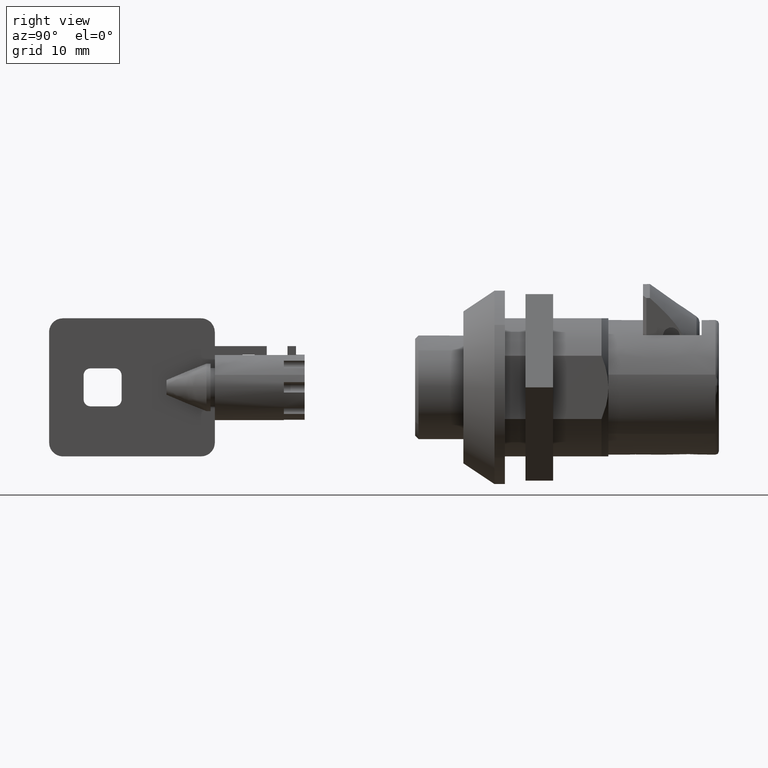
[diagram: clean part render]
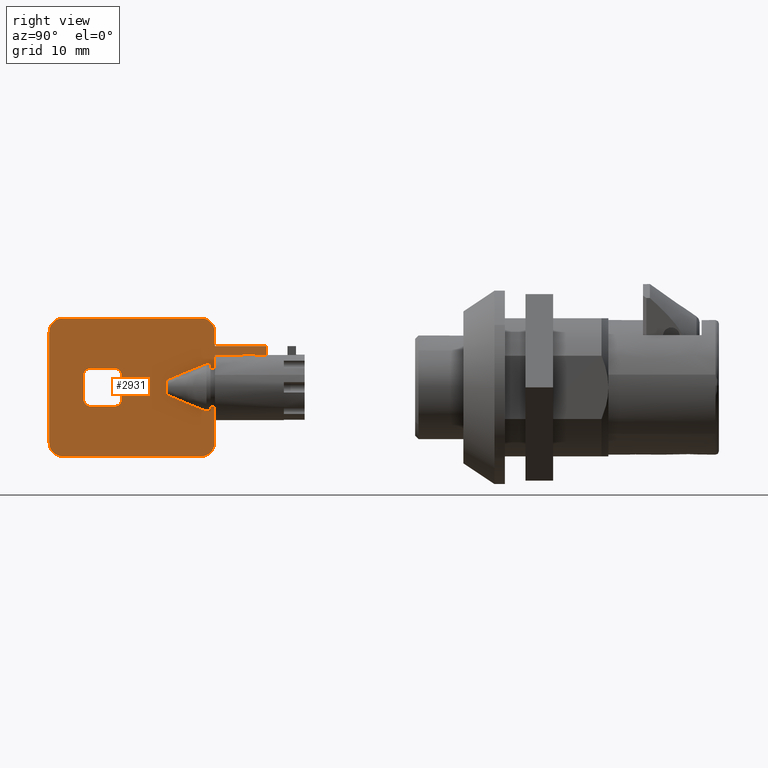
[diagram: same view with one face highlighted and labeled with its STEP entity id]
A machine part, right view. The second image highlights one B-rep face of the part: STEP entity #2931.
In plain terms, the highlighted face is a freeform B-spline surface patch.
Its self-contained STEP definition (entity closure, byte-faithful):
#544=CARTESIAN_POINT('',(-232.0,-0.750000000000028,-4.690415759823541));
#545=VERTEX_POINT('',#544);
#647=CARTESIAN_POINT('',(-224.475236736999990,-0.750000000000028,4.690415759823321));
#648=VERTEX_POINT('',#647);
#654=CARTESIAN_POINT('',(-226.242444563790000,-0.750000000000028,4.690415759823321));
#655=VERTEX_POINT('',#654);
#656=CARTESIAN_POINT('',(-224.475236736999990,-0.750000000000028,4.690415759823321));
#657=CARTESIAN_POINT('',(-226.242444563790000,-0.750000000000028,4.690415759823321));
#658=QUASI_UNIFORM_CURVE('',1,(#656,#657),.UNSPECIFIED.,.F.,.U.);
#659=EDGE_CURVE('',#648,#655,#658,.T.);
#661=CARTESIAN_POINT('',(-228.0,-0.750000000000000,4.690415759823321));
#662=VERTEX_POINT('',#661);
#668=CARTESIAN_POINT('',(-232.0,-0.750000000000000,4.690415759823321));
#669=VERTEX_POINT('',#668);
#670=CARTESIAN_POINT('',(-228.0,-0.750000000000000,4.690415759823321));
#671=CARTESIAN_POINT('',(-232.0,-0.750000000000000,4.690415759823321));
#672=QUASI_UNIFORM_CURVE('',1,(#670,#671),.UNSPECIFIED.,.F.,.U.);
#673=EDGE_CURVE('',#662,#669,#672,.T.);
#933=CARTESIAN_POINT('',(-224.475236736999990,-0.750000000000028,5.970740871829980));
#934=VERTEX_POINT('',#933);
#940=CARTESIAN_POINT('',(-224.475236736999990,-0.750000000000028,5.970740871829980));
#941=CARTESIAN_POINT('',(-224.475236736999990,-0.750000000000028,4.690415759823321));
#942=QUASI_UNIFORM_CURVE('',1,(#940,#941),.UNSPECIFIED.,.F.,.U.);
#943=EDGE_CURVE('',#934,#648,#942,.T.);
#973=CARTESIAN_POINT('',(-226.242444563790000,-0.750000000000028,4.737948698619991));
#974=VERTEX_POINT('',#973);
#980=CARTESIAN_POINT('',(-228.0,-0.750000000000028,4.737948698619991));
#981=VERTEX_POINT('',#980);
#982=CARTESIAN_POINT('',(-226.242444563790000,-0.750000000000028,4.737948698619991));
#983=CARTESIAN_POINT('',(-228.0,-0.750000000000028,4.737948698619991));
#984=QUASI_UNIFORM_CURVE('',1,(#982,#983),.UNSPECIFIED.,.F.,.U.);
#985=EDGE_CURVE('',#974,#981,#984,.T.);
#1008=CARTESIAN_POINT('',(-226.242444563790000,-0.750000000000028,4.690415759823321));
#1009=CARTESIAN_POINT('',(-226.242444563790000,-0.750000000000028,4.737948698619991));
#1010=QUASI_UNIFORM_CURVE('',1,(#1008,#1009),.UNSPECIFIED.,.F.,.U.);
#1011=EDGE_CURVE('',#655,#974,#1010,.T.);
#1868=CARTESIAN_POINT('',(-232.599999999999990,-0.750000000000000,3.440203482352215));
#1869=VERTEX_POINT('',#1868);
#1870=CARTESIAN_POINT('',(-232.599999999999990,-0.750000000000000,2.806243040085030));
#1871=VERTEX_POINT('',#1870);
#1872=CARTESIAN_POINT('',(-232.599999999999990,-0.750000000000000,3.440203482352215));
#1873=CARTESIAN_POINT('',(-232.599999999999990,-0.750000000000000,2.806243040085030));
#1874=QUASI_UNIFORM_CURVE('',1,(#1872,#1873),.UNSPECIFIED.,.F.,.U.);
#1875=EDGE_CURVE('',#1869,#1871,#1874,.T.);
#1877=CARTESIAN_POINT('',(-232.599999999999990,-0.750000000000000,-3.440203482352215));
#1878=VERTEX_POINT('',#1877);
#1894=CARTESIAN_POINT('',(-232.599999999999990,-0.750000000000000,-2.806243040085030));
#1895=VERTEX_POINT('',#1894);
#1896=CARTESIAN_POINT('',(-232.599999999999990,-0.750000000000000,-2.806243040085030));
#1897=CARTESIAN_POINT('',(-232.599999999999990,-0.750000000000000,-3.440203482352215));
#1898=QUASI_UNIFORM_CURVE('',1,(#1896,#1897),.UNSPECIFIED.,.F.,.U.);
#1899=EDGE_CURVE('',#1895,#1878,#1898,.T.);
#1936=CARTESIAN_POINT('',(-233.199999999999990,-0.750000000000000,-3.440203482352215));
#1937=VERTEX_POINT('',#1936);
#1938=CARTESIAN_POINT('',(-232.599999999999990,-0.750000000000000,-3.440203482352215));
#1939=CARTESIAN_POINT('',(-233.199999999999990,-0.750000000000000,-3.440203482352215));
#1940=QUASI_UNIFORM_CURVE('',1,(#1938,#1939),.UNSPECIFIED.,.F.,.U.);
#1941=EDGE_CURVE('',#1878,#1937,#1940,.T.);
#1944=CARTESIAN_POINT('',(-233.199999999999990,-0.750000000000000,3.440203482352215));
#1945=VERTEX_POINT('',#1944);
#1946=CARTESIAN_POINT('',(-233.199999999999990,-0.750000000000000,3.440203482352215));
#1947=CARTESIAN_POINT('',(-232.599999999999990,-0.750000000000000,3.440203482352215));
#1948=QUASI_UNIFORM_CURVE('',1,(#1946,#1947),.UNSPECIFIED.,.F.,.U.);
#1949=EDGE_CURVE('',#1945,#1869,#1948,.T.);
#1987=CARTESIAN_POINT('',(-239.0,-0.750000000000000,-1.060660171775574));
#1988=VERTEX_POINT('',#1987);
#1989=CARTESIAN_POINT('',(-233.199999999999990,-0.750000000000000,-3.440203482352215));
#1990=CARTESIAN_POINT('',(-233.831297445666710,-0.750000000000000,-3.192672116676382));
#1991=CARTESIAN_POINT('',(-234.462215594331210,-0.750000000000000,-2.944169559553595));
#1992=CARTESIAN_POINT('',(-235.722431058296990,-0.750000000000000,-2.443014295184313));
#1993=CARTESIAN_POINT('',(-236.351808152626690,-0.750000000000000,-2.190592215184496));
#1994=CARTESIAN_POINT('',(-237.292531770479000,-0.750000000000000,-1.804020677361460));
#1995=CARTESIAN_POINT('',(-237.605542711084810,-0.750000000000000,-1.673814610878441));
#1996=CARTESIAN_POINT('',(-238.229324450946390,-0.750000000000000,-1.408041042322752));
#1997=CARTESIAN_POINT('',(-238.540191876838290,-0.750000000000000,-1.272704801320065));
#1998=CARTESIAN_POINT('',(-238.899030339134610,-0.750000000000000,-1.107755796623606));
#1999=CARTESIAN_POINT('',(-238.949568609213600,-0.750000000000000,-1.084316623477761));
#2000=CARTESIAN_POINT('',(-239.0,-0.750000000000000,-1.060660171775574));
#2001=B_SPLINE_CURVE_WITH_KNOTS('',3,(#1989,#1990,#1991,#1992,#1993,#1994,#1995,#1996,#1997,#1998,#1999,#2000),.UNSPECIFIED.,.F.,.U.,(4,2,2,2,2,4),(0.0,0.125000000000023,0.250000000000045,0.312500000000057,0.375000000000068,0.385264977141127),.UNSPECIFIED.);
#2002=EDGE_CURVE('',#1937,#1988,#2001,.T.);
#2005=CARTESIAN_POINT('',(-239.0,-0.750000000000000,1.060660171775574));
#2006=VERTEX_POINT('',#2005);
#2007=CARTESIAN_POINT('',(-239.0,-0.750000000000000,1.060660171775574));
#2008=CARTESIAN_POINT('',(-238.936167796036300,-0.750000000000000,1.090606473848746));
#2009=CARTESIAN_POINT('',(-238.872155778518900,-0.750000000000000,1.120206575066255));
#2010=CARTESIAN_POINT('',(-238.501917908066300,-0.750000000000000,1.289562803727005));
#2011=CARTESIAN_POINT('',(-238.192963531593590,-0.750000000000000,1.423754877889063));
#2012=CARTESIAN_POINT('',(-237.573466015208510,-0.750000000000000,1.687231626343362));
#2013=CARTESIAN_POINT('',(-237.262670403461190,-0.750000000000000,1.816383808526862));
#2014=CARTESIAN_POINT('',(-236.328686096132490,-0.750000000000000,2.199893891331620));
#2015=CARTESIAN_POINT('',(-235.703939635300800,-0.750000000000000,2.450403421683778));
#2016=CARTESIAN_POINT('',(-234.452982118316900,-0.750000000000000,2.947804283120521));
#2017=CARTESIAN_POINT('',(-233.826684131985590,-0.750000000000000,3.194480858152192));
#2018=CARTESIAN_POINT('',(-233.199999999999990,-0.750000000000000,3.440203482352215));
#2019=B_SPLINE_CURVE_WITH_KNOTS('',3,(#2007,#2008,#2009,#2010,#2011,#2012,#2013,#2014,#2015,#2016,#2017,#2018),.UNSPECIFIED.,.F.,.U.,(4,2,2,2,2,4),(0.611902203524427,0.625000000000063,0.687500000000052,0.750000000000042,0.875000000000021,1.0),.UNSPECIFIED.);
#2020=EDGE_CURVE('',#2006,#1945,#2019,.T.);
#2040=CARTESIAN_POINT('',(-239.0,-0.750000000000000,-1.060660171775574));
#2041=CARTESIAN_POINT('',(-239.0,-0.750000000000000,1.060660171775574));
#2042=QUASI_UNIFORM_CURVE('',1,(#2040,#2041),.UNSPECIFIED.,.F.,.U.);
#2043=EDGE_CURVE('',#1988,#2006,#2042,.T.);
#2067=CARTESIAN_POINT('',(-232.0,-0.750000000000000,-2.806243040085030));
#2068=VERTEX_POINT('',#2067);
#2069=CARTESIAN_POINT('',(-232.0,-0.750000000000000,-2.806243040085030));
#2070=CARTESIAN_POINT('',(-232.599999999999990,-0.750000000000000,-2.806243040085030));
#2071=QUASI_UNIFORM_CURVE('',1,(#2069,#2070),.UNSPECIFIED.,.F.,.U.);
#2072=EDGE_CURVE('',#2068,#1895,#2071,.T.);
#2074=CARTESIAN_POINT('',(-232.0,-0.750000000000000,2.806243040085030));
#2075=VERTEX_POINT('',#2074);
#2091=CARTESIAN_POINT('',(-232.599999999999990,-0.750000000000000,2.806243040085030));
#2092=CARTESIAN_POINT('',(-232.0,-0.750000000000000,2.806243040085030));
#2093=QUASI_UNIFORM_CURVE('',1,(#2091,#2092),.UNSPECIFIED.,.F.,.U.);
#2094=EDGE_CURVE('',#1871,#2075,#2093,.T.);
#2127=CARTESIAN_POINT('',(-246.500000000000000,-0.750000000000028,-2.750000000000000));
#2128=VERTEX_POINT('',#2127);
#2134=CARTESIAN_POINT('',(-245.500000000000000,-0.750000000000028,-1.750000000000000));
#2135=VERTEX_POINT('',#2134);
#2136=CARTESIAN_POINT('',(-246.500000000000000,-0.750000000000028,-2.750000000000000));
#2137=CARTESIAN_POINT('',(-246.303463694870490,-0.750000000000029,-2.750679581532616));
#2138=CARTESIAN_POINT('',(-245.993502498909690,-0.750000000000030,-2.655416979312291));
#2139=CARTESIAN_POINT('',(-245.608537515747910,-0.750000000000025,-2.288843436205225));
#2140=CARTESIAN_POINT('',(-245.498957797127790,-0.750000000000029,-1.963057519500140));
#2141=CARTESIAN_POINT('',(-245.500000000000000,-0.750000000000028,-1.750000000000000));
#2142=B_SPLINE_CURVE_WITH_KNOTS('',3,(#2136,#2137,#2138,#2139,#2140,#2141),.UNSPECIFIED.,.F.,.U.,(4,1,1,4),(0.000001035564434,0.589114396687956,0.932702713080990,1.570953883565508),.UNSPECIFIED.);
#2143=EDGE_CURVE('',#2128,#2135,#2142,.T.);
#2166=CARTESIAN_POINT('',(-245.500000000000000,-0.750000000000028,1.750000000000000));
#2167=VERTEX_POINT('',#2166);
#2168=CARTESIAN_POINT('',(-245.500000000000000,-0.750000000000028,-1.750000000000000));
#2169=CARTESIAN_POINT('',(-245.500000000000000,-0.750000000000028,1.750000000000000));
#2170=QUASI_UNIFORM_CURVE('',1,(#2168,#2169),.UNSPECIFIED.,.F.,.U.);
#2171=EDGE_CURVE('',#2135,#2167,#2170,.T.);
#2208=CARTESIAN_POINT('',(-246.500000000000000,-0.750000000000028,2.750000000000000));
#2209=VERTEX_POINT('',#2208);
#2210=CARTESIAN_POINT('',(-245.500000000000000,-0.750000000000028,1.750000000000000));
#2211=CARTESIAN_POINT('',(-245.499946044943100,-0.750000000000029,1.864528438532408));
#2212=CARTESIAN_POINT('',(-245.542545986841700,-0.750000000000027,2.110005796660416));
#2213=CARTESIAN_POINT('',(-245.714063539029010,-0.750000000000030,2.396055543201445));
#2214=CARTESIAN_POINT('',(-246.026176737606900,-0.750000000000024,2.665471653572823));
#2215=CARTESIAN_POINT('',(-246.303447949167610,-0.750000000000031,2.750658028406441));
#2216=CARTESIAN_POINT('',(-246.500000000000000,-0.750000000000028,2.750000000000000));
#2217=B_SPLINE_CURVE_WITH_KNOTS('',3,(#2210,#2211,#2212,#2213,#2214,#2215,#2216),.UNSPECIFIED.,.F.,.U.,(4,1,1,1,4),(0.000001035565528,0.343638637549153,0.736452044488574,0.981840522442326,1.570953883565285),.UNSPECIFIED.);
#2218=EDGE_CURVE('',#2167,#2209,#2217,.T.);
#2241=CARTESIAN_POINT('',(-250.0,-0.750000000000028,2.750000000000000));
#2242=VERTEX_POINT('',#2241);
#2243=CARTESIAN_POINT('',(-246.500000000000000,-0.750000000000028,2.750000000000000));
#2244=CARTESIAN_POINT('',(-250.0,-0.750000000000028,2.750000000000000));
#2245=QUASI_UNIFORM_CURVE('',1,(#2243,#2244),.UNSPECIFIED.,.F.,.U.);
#2246=EDGE_CURVE('',#2209,#2242,#2245,.T.);
#2282=CARTESIAN_POINT('',(-251.0,-0.750000000000028,1.750000000000000));
#2283=VERTEX_POINT('',#2282);
#2284=CARTESIAN_POINT('',(-250.0,-0.750000000000028,2.750000000000000));
#2285=CARTESIAN_POINT('',(-250.196528941868110,-0.750000000000027,2.750672903632065));
#2286=CARTESIAN_POINT('',(-250.506499120855100,-0.750000000000029,2.655430567413779));
#2287=CARTESIAN_POINT('',(-250.891502413233610,-0.750000000000028,2.288832943837126));
#2288=CARTESIAN_POINT('',(-251.000987395341210,-0.750000000000028,1.963056453279286));
#2289=CARTESIAN_POINT('',(-251.0,-0.750000000000028,1.750000000000000));
#2290=B_SPLINE_CURVE_WITH_KNOTS('',3,(#2284,#2285,#2286,#2287,#2288,#2289),.UNSPECIFIED.,.F.,.U.,(4,1,1,4),(0.000001035577127,0.589114396696783,0.932702713086631,1.570953883565012),.UNSPECIFIED.);
#2291=EDGE_CURVE('',#2242,#2283,#2290,.T.);
#2314=CARTESIAN_POINT('',(-251.0,-0.750000000000028,-1.750000000000000));
#2315=VERTEX_POINT('',#2314);
#2316=CARTESIAN_POINT('',(-251.0,-0.750000000000028,1.750000000000000));
#2317=CARTESIAN_POINT('',(-251.0,-0.750000000000028,-1.750000000000000));
#2318=QUASI_UNIFORM_CURVE('',1,(#2316,#2317),.UNSPECIFIED.,.F.,.U.);
#2319=EDGE_CURVE('',#2283,#2315,#2318,.T.);
#2355=CARTESIAN_POINT('',(-250.0,-0.750000000000028,-2.750000000000000));
#2356=VERTEX_POINT('',#2355);
#2357=CARTESIAN_POINT('',(-251.0,-0.750000000000028,-1.750000000000000));
#2358=CARTESIAN_POINT('',(-251.000661374212090,-0.750000000000027,-1.946502388028710));
#2359=CARTESIAN_POINT('',(-250.900456758835300,-0.750000000000031,-2.272929441893773));
#2360=CARTESIAN_POINT('',(-250.522806058032190,-0.750000000000025,-2.650331894126485));
#2361=CARTESIAN_POINT('',(-250.196557865140110,-0.750000000000030,-2.750744842482880));
#2362=CARTESIAN_POINT('',(-250.0,-0.750000000000028,-2.750000000000000));
#2363=B_SPLINE_CURVE_WITH_KNOTS('',3,(#2357,#2358,#2359,#2360,#2361,#2362),.UNSPECIFIED.,.F.,.U.,(4,1,1,4),(0.000001035567778,0.589114396690339,0.981840522443770,1.570953883565278),.UNSPECIFIED.);
#2364=EDGE_CURVE('',#2315,#2356,#2363,.T.);
#2385=CARTESIAN_POINT('',(-250.0,-0.750000000000028,-2.750000000000000));
#2386=CARTESIAN_POINT('',(-246.500000000000000,-0.750000000000028,-2.750000000000000));
#2387=QUASI_UNIFORM_CURVE('',1,(#2385,#2386),.UNSPECIFIED.,.F.,.U.);
#2388=EDGE_CURVE('',#2356,#2128,#2387,.T.);
#2407=CARTESIAN_POINT('',(-232.0,-0.750000000000028,-7.999999999999669));
#2408=VERTEX_POINT('',#2407);
#2409=CARTESIAN_POINT('',(-232.0,-0.750000000000028,-7.999999999999669));
#2410=CARTESIAN_POINT('',(-232.0,-0.750000000000028,-4.690415759823541));
#2411=QUASI_UNIFORM_CURVE('',1,(#2409,#2410),.UNSPECIFIED.,.F.,.U.);
#2412=EDGE_CURVE('',#2408,#545,#2411,.T.);
#2453=CARTESIAN_POINT('',(-234.0,-0.750000000000028,-10.0));
#2454=VERTEX_POINT('',#2453);
#2455=CARTESIAN_POINT('',(-234.0,-0.750000000000028,-10.0));
#2456=CARTESIAN_POINT('',(-233.672590952909190,-0.750000000000029,-10.000720414573800));
#2457=CARTESIAN_POINT('',(-233.149753461588690,-0.750000000000024,-9.868473160949543));
#2458=CARTESIAN_POINT('',(-232.711326053134910,-0.750000000000034,-9.543211001601080));
#2459=CARTESIAN_POINT('',(-232.551275966450900,-0.750000000000029,-9.379376887314027));
#2460=CARTESIAN_POINT('',(-232.518806807023110,-0.750000000000028,-9.342592950206308));
#2461=CARTESIAN_POINT('',(-232.485352215170390,-0.750000000000028,-9.306642501633029));
#2462=CARTESIAN_POINT('',(-232.337900884697490,-0.750000000000028,-9.131261898838769));
#2463=CARTESIAN_POINT('',(-232.091354266128890,-0.750000000000031,-8.719741639417219));
#2464=CARTESIAN_POINT('',(-231.999702575739210,-0.750000000000031,-8.261847144428579));
#2465=CARTESIAN_POINT('',(-232.0,-0.750000000000028,-7.999999999999669));
#2466=B_SPLINE_CURVE_WITH_KNOTS('',3,(#2455,#2456,#2457,#2458,#2459,#2460,#2461,#2462,#2463,#2464,#2465),.UNSPECIFIED.,.F.,.U.,(4,1,1,1,1,1,1,1,4),(0.000379962042891,0.982129227605077,1.571126934561410,1.620120514172344,1.669212954593691,1.718305395015038,1.767432754658679,2.356492755975514,3.141858582772787),.UNSPECIFIED.);
#2467=EDGE_CURVE('',#2454,#2408,#2466,.T.);
#2490=CARTESIAN_POINT('',(-254.0,-0.750000000000028,-10.0));
#2491=VERTEX_POINT('',#2490);
#2492=CARTESIAN_POINT('',(-254.0,-0.750000000000028,-10.0));
#2493=CARTESIAN_POINT('',(-234.0,-0.750000000000028,-10.0));
#2494=QUASI_UNIFORM_CURVE('',1,(#2492,#2493),.UNSPECIFIED.,.F.,.U.);
#2495=EDGE_CURVE('',#2491,#2454,#2494,.T.);
#2535=CARTESIAN_POINT('',(-256.0,-0.750000000000028,-8.0));
#2536=VERTEX_POINT('',#2535);
#2537=CARTESIAN_POINT('',(-256.0,-0.750000000000028,-8.0));
#2538=CARTESIAN_POINT('',(-256.000500786976490,-0.750000000000030,-8.294612600812334));
#2539=CARTESIAN_POINT('',(-255.878353783189990,-0.750000000000024,-8.834046138966148));
#2540=CARTESIAN_POINT('',(-255.547336958056600,-0.750000000000032,-9.292902372006832));
#2541=CARTESIAN_POINT('',(-255.342865122134700,-0.750000000000028,-9.481502836920509));
#2542=CARTESIAN_POINT('',(-255.306643965181710,-0.750000000000027,-9.514650172598977));
#2543=CARTESIAN_POINT('',(-255.131261637308310,-0.750000000000034,-9.662096946222151));
#2544=CARTESIAN_POINT('',(-254.719741130712890,-0.750000000000018,-9.908645667292346));
#2545=CARTESIAN_POINT('',(-254.261847368439990,-0.750000000000027,-10.000297471069620));
#2546=CARTESIAN_POINT('',(-254.0,-0.750000000000028,-10.0));
#2547=B_SPLINE_CURVE_WITH_KNOTS('',3,(#2537,#2538,#2539,#2540,#2541,#2542,#2543,#2544,#2545,#2546),.UNSPECIFIED.,.F.,.U.,(4,1,1,1,1,1,1,4),(0.000379962071419,0.883946927267393,1.620120514186010,1.669212954606788,1.718305395027568,1.767432754670708,2.356492755982217,3.141858582772355),.UNSPECIFIED.);
#2548=EDGE_CURVE('',#2536,#2491,#2547,.T.);
#2571=CARTESIAN_POINT('',(-256.0,-0.750000000000028,8.0));
#2572=VERTEX_POINT('',#2571);
#2573=CARTESIAN_POINT('',(-256.0,-0.750000000000028,8.0));
#2574=CARTESIAN_POINT('',(-256.0,-0.750000000000028,-8.0));
#2575=QUASI_UNIFORM_CURVE('',1,(#2573,#2574),.UNSPECIFIED.,.F.,.U.);
#2576=EDGE_CURVE('',#2572,#2536,#2575,.T.);
#2617=CARTESIAN_POINT('',(-254.0,-0.750000000000028,10.0));
#2618=VERTEX_POINT('',#2617);
#2619=CARTESIAN_POINT('',(-254.0,-0.750000000000028,10.0));
#2620=CARTESIAN_POINT('',(-254.294625267502200,-0.750000000000028,10.000499980473951));
#2621=CARTESIAN_POINT('',(-254.817706720872390,-0.750000000000032,9.882048495125666));
#2622=CARTESIAN_POINT('',(-255.265888770966710,-0.750000000000024,9.566749627052483));
#2623=CARTESIAN_POINT('',(-255.448711272862000,-0.750000000000027,9.379360725336454));
#2624=CARTESIAN_POINT('',(-255.481193054986900,-0.750000000000028,9.342592980886163));
#2625=CARTESIAN_POINT('',(-255.514650172599090,-0.750000000000028,9.306643965182024));
#2626=CARTESIAN_POINT('',(-255.662096946221790,-0.750000000000028,9.131261637306487));
#2627=CARTESIAN_POINT('',(-255.908645667293200,-0.750000000000030,8.719741130715699));
#2628=CARTESIAN_POINT('',(-256.000297471069590,-0.750000000000028,8.261847368440577));
#2629=CARTESIAN_POINT('',(-256.0,-0.750000000000028,8.0));
#2630=B_SPLINE_CURVE_WITH_KNOTS('',3,(#2619,#2620,#2621,#2622,#2623,#2624,#2625,#2626,#2627,#2628,#2629),.UNSPECIFIED.,.F.,.U.,(4,1,1,1,1,1,1,1,4),(0.000379962068415,0.883946927266661,1.571126934575948,1.620120514186447,1.669212954607300,1.718305395028153,1.767432754671290,2.356492755982452,3.141858582772639),.UNSPECIFIED.);
#2631=EDGE_CURVE('',#2618,#2572,#2630,.T.);
#2654=CARTESIAN_POINT('',(-234.0,-0.750000000000028,10.0));
#2655=VERTEX_POINT('',#2654);
#2656=CARTESIAN_POINT('',(-234.0,-0.750000000000028,10.0));
#2657=CARTESIAN_POINT('',(-254.0,-0.750000000000028,10.0));
#2658=QUASI_UNIFORM_CURVE('',1,(#2656,#2657),.UNSPECIFIED.,.F.,.U.);
#2659=EDGE_CURVE('',#2655,#2618,#2658,.T.);
#2699=CARTESIAN_POINT('',(-232.0,-0.750000000000028,8.0));
#2700=VERTEX_POINT('',#2699);
#2701=CARTESIAN_POINT('',(-232.0,-0.750000000000028,8.0));
#2702=CARTESIAN_POINT('',(-231.999848225938190,-0.750000000000029,8.229073041582410));
#2703=CARTESIAN_POINT('',(-232.093801773974090,-0.750000000000026,8.768925426973983));
#2704=CARTESIAN_POINT('',(-232.404282354416010,-0.750000000000032,9.248590067502894));
#2705=CARTESIAN_POINT('',(-232.657179858694290,-0.750000000000028,9.481484430350612));
#2706=CARTESIAN_POINT('',(-232.693375743834310,-0.750000000000028,9.514612584963448));
#2707=CARTESIAN_POINT('',(-232.918699462039200,-0.750000000000028,9.704498251785051));
#2708=CARTESIAN_POINT('',(-233.345525816919090,-0.750000000000029,9.932001450527453));
#2709=CARTESIAN_POINT('',(-233.803665092021190,-0.750000000000027,10.000068384603191));
#2710=CARTESIAN_POINT('',(-234.0,-0.750000000000028,10.0));
#2711=B_SPLINE_CURVE_WITH_KNOTS('',3,(#2701,#2702,#2703,#2704,#2705,#2706,#2707,#2708,#2709,#2710),.UNSPECIFIED.,.F.,.U.,(4,1,1,1,1,1,1,4),(0.000379962074379,0.687588628557617,1.620120514187241,1.669212954607978,1.718305395028715,1.767432754671829,2.552857684556323,3.141858582772395),.UNSPECIFIED.);
#2712=EDGE_CURVE('',#2700,#2655,#2711,.T.);
#2735=CARTESIAN_POINT('',(-232.0,-0.750000000000028,5.970740871829980));
#2736=VERTEX_POINT('',#2735);
#2737=CARTESIAN_POINT('',(-232.0,-0.750000000000028,5.970740871829980));
#2738=CARTESIAN_POINT('',(-232.0,-0.750000000000028,8.0));
#2739=QUASI_UNIFORM_CURVE('',1,(#2737,#2738),.UNSPECIFIED.,.F.,.U.);
#2740=EDGE_CURVE('',#2736,#2700,#2739,.T.);
#2761=CARTESIAN_POINT('',(-224.475236736999990,-0.750000000000028,5.970740871829980));
#2762=CARTESIAN_POINT('',(-232.0,-0.750000000000028,5.970740871829980));
#2763=QUASI_UNIFORM_CURVE('',1,(#2761,#2762),.UNSPECIFIED.,.F.,.U.);
#2764=EDGE_CURVE('',#934,#2736,#2763,.T.);
#2781=CARTESIAN_POINT('',(-228.0,-0.750000000000000,4.690415759823321));
#2782=CARTESIAN_POINT('',(-228.0,-0.750000000000028,4.737948698619991));
#2783=QUASI_UNIFORM_CURVE('',1,(#2781,#2782),.UNSPECIFIED.,.F.,.U.);
#2784=EDGE_CURVE('',#662,#981,#2783,.T.);
#2805=CARTESIAN_POINT('',(-232.0,-0.750000000000000,4.690415759823321));
#2806=CARTESIAN_POINT('',(-232.0,-0.750000000000000,2.806243040085030));
#2807=QUASI_UNIFORM_CURVE('',1,(#2805,#2806),.UNSPECIFIED.,.F.,.U.);
#2808=EDGE_CURVE('',#669,#2075,#2807,.T.);
#2811=CARTESIAN_POINT('',(-232.0,-0.750000000000000,-2.806243040085030));
#2812=CARTESIAN_POINT('',(-232.0,-0.750000000000028,-4.690415759823541));
#2813=QUASI_UNIFORM_CURVE('',1,(#2811,#2812),.UNSPECIFIED.,.F.,.U.);
#2814=EDGE_CURVE('',#2068,#545,#2813,.T.);
#2887=CARTESIAN_POINT('',(-257.574661863885810,-0.750000000000000,10.998999961236120));
#2888=CARTESIAN_POINT('',(-222.900574027554200,-0.750000000000000,10.998999961236120));
#2889=CARTESIAN_POINT('',(-257.574661863885810,-0.750000000000000,-10.999000497677921));
#2890=CARTESIAN_POINT('',(-222.900574027554200,-0.750000000000000,-10.999000497677921));
#2891=B_SPLINE_SURFACE_WITH_KNOTS('',1,1,((#2887,#2889),(#2888,#2890)),.UNSPECIFIED.,.F.,.F.,.U.,(2,2),(2,2),(0.0,34.674087836331552),(0.0,21.998000458914039),.UNSPECIFIED.);
#2892=ORIENTED_EDGE('',*,*,#2814,.F.);
#2893=ORIENTED_EDGE('',*,*,#2072,.T.);
#2894=ORIENTED_EDGE('',*,*,#1899,.T.);
#2895=ORIENTED_EDGE('',*,*,#1941,.T.);
#2896=ORIENTED_EDGE('',*,*,#2002,.T.);
#2897=ORIENTED_EDGE('',*,*,#2043,.T.);
#2898=ORIENTED_EDGE('',*,*,#2020,.T.);
#2899=ORIENTED_EDGE('',*,*,#1949,.T.);
#2900=ORIENTED_EDGE('',*,*,#1875,.T.);
#2901=ORIENTED_EDGE('',*,*,#2094,.T.);
#2902=ORIENTED_EDGE('',*,*,#2808,.F.);
#2903=ORIENTED_EDGE('',*,*,#673,.F.);
#2904=ORIENTED_EDGE('',*,*,#2784,.T.);
#2905=ORIENTED_EDGE('',*,*,#985,.F.);
#2906=ORIENTED_EDGE('',*,*,#1011,.F.);
#2907=ORIENTED_EDGE('',*,*,#659,.F.);
#2908=ORIENTED_EDGE('',*,*,#943,.F.);
#2909=ORIENTED_EDGE('',*,*,#2764,.T.);
#2910=ORIENTED_EDGE('',*,*,#2740,.T.);
#2911=ORIENTED_EDGE('',*,*,#2712,.T.);
#2912=ORIENTED_EDGE('',*,*,#2659,.T.);
#2913=ORIENTED_EDGE('',*,*,#2631,.T.);
#2914=ORIENTED_EDGE('',*,*,#2576,.T.);
#2915=ORIENTED_EDGE('',*,*,#2548,.T.);
#2916=ORIENTED_EDGE('',*,*,#2495,.T.);
#2917=ORIENTED_EDGE('',*,*,#2467,.T.);
#2918=ORIENTED_EDGE('',*,*,#2412,.T.);
#2919=EDGE_LOOP('',(#2892,#2893,#2894,#2895,#2896,#2897,#2898,#2899,#2900,#2901,#2902,#2903,#2904,#2905,#2906,#2907,#2908,#2909,#2910,#2911,#2912,#2913,#2914,#2915,#2916,#2917,#2918));
#2920=FACE_OUTER_BOUND('',#2919,.T.);
#2921=ORIENTED_EDGE('',*,*,#2388,.F.);
#2922=ORIENTED_EDGE('',*,*,#2364,.F.);
#2923=ORIENTED_EDGE('',*,*,#2319,.F.);
#2924=ORIENTED_EDGE('',*,*,#2291,.F.);
#2925=ORIENTED_EDGE('',*,*,#2246,.F.);
#2926=ORIENTED_EDGE('',*,*,#2218,.F.);
#2927=ORIENTED_EDGE('',*,*,#2171,.F.);
#2928=ORIENTED_EDGE('',*,*,#2143,.F.);
#2929=EDGE_LOOP('',(#2921,#2922,#2923,#2924,#2925,#2926,#2927,#2928));
#2930=FACE_BOUND('',#2929,.T.);
#2931=ADVANCED_FACE('',(#2920,#2930),#2891,.F.);